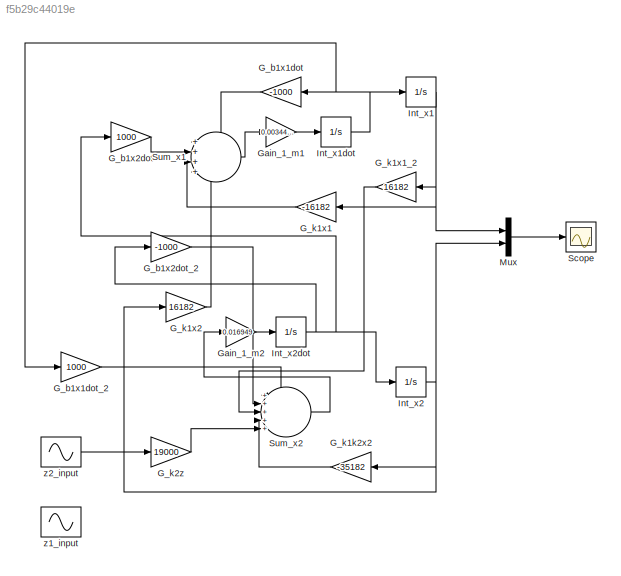
MODEL slx_f5b29c44019e
KIND model
CONFIG AbsTol = auto
CONFIG EnableMultiTasking = off
CONFIG FixedStep = auto
CONFIG MaxStep = auto
CONFIG MinStep = auto
CONFIG RelTol = 1e-3
CONFIG SampleTimeConstraint = Unconstrained
CONFIG SolverName = VariableStepAuto
CONFIG StartTime = 0.0
CONFIG StopTime = 10.0
BLOCK [Gain] G_b1x1dot
  Gain = -1000
  NameLocation = top
BLOCK [Gain] G_b1x1dot_2
  Gain = 1000
BLOCK [Gain] G_b1x2dot
  Gain = 1000
BLOCK [Gain] G_b1x2dot_2
  Gain = -1000
BLOCK [Gain] G_k1k2x2
  Gain = -35182
  NameLocation = top
BLOCK [Gain] G_k1x1
  Gain = -16182
  NameLocation = top
BLOCK [Gain] G_k1x1_2
  Gain = 16182
  NameLocation = top
BLOCK [Gain] G_k1x2
  Gain = 16182
BLOCK [Gain] G_k2z
  Gain = 19000
BLOCK [Gain] Gain_1_m1
  Gain = 0.0034483
BLOCK [Gain] Gain_1_m2
  Gain = 0.016949
BLOCK [Integrator] Int_x1
BLOCK [Integrator] Int_x1dot
BLOCK [Integrator] Int_x2
BLOCK [Integrator] Int_x2dot
BLOCK [Mux] Mux
  DisplayOption = bar
  Inputs = 2
BLOCK [Scope] Scope
  ActiveDisplayYMaximum = 0.013153484552614714
  ActiveDisplayYMinimum = -0.00810040177813406
  Floating = off
  GraphicalSettings = {"Style":{"BackgroundColor":[0.12941176470588237,0.12941176470588237,0.12941176470588237],"AxesColor":[0.07058823529411765,0.07058823529411765,0.07058823529411765],"LabelsColor":[0.8509803921568627,0.8509803921568627,0.8509803921568627],"PreserveColors":false,"Visible":[true,true],"LineStyle":["-","-"],"LineWidth":[1.5,1.5],"BarWidth":[0.9,0.9],"LineColor":["auto","auto"],"LineFaceAlpha":[1,1],"Li...<+2007ch>
  MultipleDisplayCache = [{"MaxYLimMag":0.013153484552614714,"MaxYLimReal":0.013153484552614714,"MinYLimMag":0,"MinYLimReal":-0.00810040177813406,"PlotAsMagnitudePhase":false,"ShowGrid":true,"ShowLegend":false,"Title":"%<SignalLabel>","YLabel":""}]
  NumInputPorts = 1
  ScopeFrameLocation = window
  WasSavedAsWebScope = on
  WindowPosition = [488.000000,222.000000,560.000000,420.000000,]
BLOCK [Sum] Sum_x1
  Inputs = ++++
BLOCK [Sum] Sum_x2
  Inputs = +++++
BLOCK [Sin] z1_input
  Amplitude = 0.05
  Frequency = 1.5708
  SampleTime = 0
BLOCK [Sin] z2_input
  Amplitude = 0.05
  Frequency = 62.8319
  SampleTime = 0
LINE G_b1x1dot:1 -> Sum_x1:1
LINE G_b1x1dot_2:1 -> Sum_x2:1
LINE G_b1x2dot:1 -> Sum_x1:2
LINE G_b1x2dot_2:1 -> Sum_x2:2
LINE G_k1k2x2:1 -> Sum_x2:4
LINE G_k1x1:1 -> Sum_x1:3
LINE G_k1x1_2:1 -> Sum_x2:3
LINE G_k1x2:1 -> Sum_x1:4
LINE G_k2z:1 -> Sum_x2:5
LINE Gain_1_m1:1 -> Int_x1dot:1
LINE Gain_1_m2:1 -> Int_x2dot:1
NET Int_x1:1 -> G_k1x1:1, G_k1x1_2:1, Mux:1
NET Int_x1dot:1 -> G_b1x1dot:1, G_b1x1dot_2:1, Int_x1:1
NET Int_x2:1 -> G_k1k2x2:1, G_k1x2:1, Mux:2
NET Int_x2dot:1 -> G_b1x2dot:1, G_b1x2dot_2:1, Int_x2:1
LINE Mux:1 -> Scope:1
LINE Sum_x1:1 -> Gain_1_m1:1
LINE Sum_x2:1 -> Gain_1_m2:1
LINE z2_input:1 -> G_k2z:1
note: NET lines group one-source signal fan-out (src -> all destinations, sorted); 1:1 wires keep LINE
